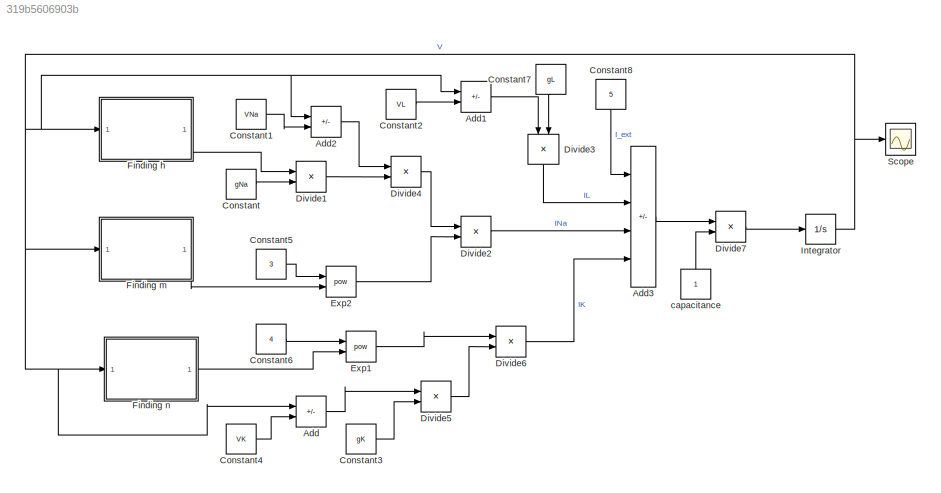
MODEL slx_319b5606903b
KIND model
CONFIG AbsTol = auto
CONFIG EnableMultiTasking = off
CONFIG FixedStep = auto
CONFIG MaxStep = auto
CONFIG MinStep = auto
CONFIG RelTol = 1e-3
CONFIG SampleTimeConstraint = Unconstrained
CONFIG SolverName = VariableStepAuto
CONFIG StartTime = 0.0
CONFIG StopTime = 2
BLOCK [Sum] Add
  IconShape = rectangular
  Inputs = +-
  Ports = [2, 1]
BLOCK [Sum] Add1
  IconShape = rectangular
  Inputs = +-
  Ports = [2, 1]
BLOCK [Sum] Add2
  IconShape = rectangular
  Inputs = +-
  Ports = [2, 1]
BLOCK [Sum] Add3
  IconShape = rectangular
  Inputs = +---
  Ports = [4, 1]
BLOCK [Constant] Constant
  Value = gNa
BLOCK [Constant] Constant1
  Value = VNa
BLOCK [Constant] Constant2
  Value = VL
BLOCK [Constant] Constant3
  Value = gK
BLOCK [Constant] Constant4
  Value = VK
BLOCK [Constant] Constant5
  Value = 3
BLOCK [Constant] Constant6
  Value = 4
BLOCK [Constant] Constant7
  NameLocation = left
  Value = gL
BLOCK [Constant] Constant8
  NameLocation = left
  Value = 5
BLOCK [Product] Divide1
  Inputs = **
  Ports = [2, 1]
BLOCK [Product] Divide2
  Inputs = **
  Ports = [2, 1]
BLOCK [Product] Divide3
  Inputs = **
  NameLocation = left
  Ports = [2, 1]
BLOCK [Product] Divide4
  Inputs = **
  Ports = [2, 1]
BLOCK [Product] Divide5
  Inputs = **
  Ports = [2, 1]
BLOCK [Product] Divide6
  Inputs = **
  Ports = [2, 1]
BLOCK [Product] Divide7
  Inputs = */
  Ports = [2, 1]
BLOCK [Math] Exp1
  Operator = pow
  Ports = [2, 1]
BLOCK [Math] Exp2
  Operator = pow
  Ports = [2, 1]
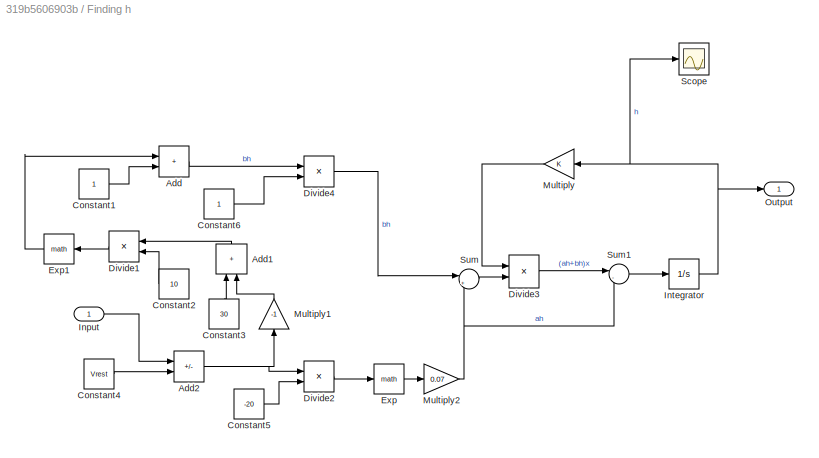
BLOCK [SubSystem] Finding h
  Ports = [1, 1]
  RequestExecContextInheritance = off
BLOCK [Sum] Finding h/Add
  IconShape = rectangular
  Ports = [2, 1]
BLOCK [Sum] Finding h/Add1
  IconShape = rectangular
  NameLocation = right
  Ports = [2, 1]
BLOCK [Sum] Finding h/Add2
  IconShape = rectangular
  Inputs = +-
  Ports = [2, 1]
BLOCK [Constant] Finding h/Constant1
BLOCK [Constant] Finding h/Constant2
  NameLocation = top
  Value = 10
BLOCK [Constant] Finding h/Constant3
  NameLocation = right
  Value = 30
BLOCK [Constant] Finding h/Constant4
  Value = Vrest
BLOCK [Constant] Finding h/Constant5
  Value = -20
BLOCK [Constant] Finding h/Constant6
BLOCK [Product] Finding h/Divide1
  Inputs = */
  NameLocation = top
  Ports = [2, 1]
BLOCK [Product] Finding h/Divide2
  Inputs = */
  Ports = [2, 1]
BLOCK [Product] Finding h/Divide3
  Inputs = **
  Ports = [2, 1]
BLOCK [Product] Finding h/Divide4
  Inputs = /*
  Ports = [2, 1]
BLOCK [Math] Finding h/Exp
  Ports = [1, 1]
BLOCK [Math] Finding h/Exp1
  NameLocation = top
  Ports = [1, 1]
BLOCK [Inport] Finding h/Input
BLOCK [Integrator] Finding h/Integrator
  Ports = [1, 1]
BLOCK [Gain] Finding h/Multiply
  NameLocation = top
BLOCK [Gain] Finding h/Multiply1
  Gain = -1
  NameLocation = right
BLOCK [Gain] Finding h/Multiply2
  Gain = 0.07
BLOCK [Outport] Finding h/Output
BLOCK [Scope] Finding h/Scope
  Floating = off
  NumInputPorts = 1
  Ports = [1]
  ScopeSpecificationString = Simulink.scopes.TimeScopeBlockCfg('CurrentConfiguration', extmgr.ConfigurationSet(extmgr.Configuration('Core','General UI',true),extmgr.Configuration('Core','Source UI',true),extmgr.Configuration('Sources','WiredSimulink',true),extmgr.Configuration('Visuals','Time Domain',true),extmgr.Configuration('Tools','Plot Navigation',true),extmgr.Configuration('Tools','Measurements',true)),'Version','2021b'...<+1ch>  <repeated x3 — deduplicated; at blocks: Scope>
BLOCK [Sum] Finding h/Sum
  Inputs = |++
  Ports = [2, 1]
BLOCK [Sum] Finding h/Sum1
  Inputs = |-+
  Ports = [2, 1]
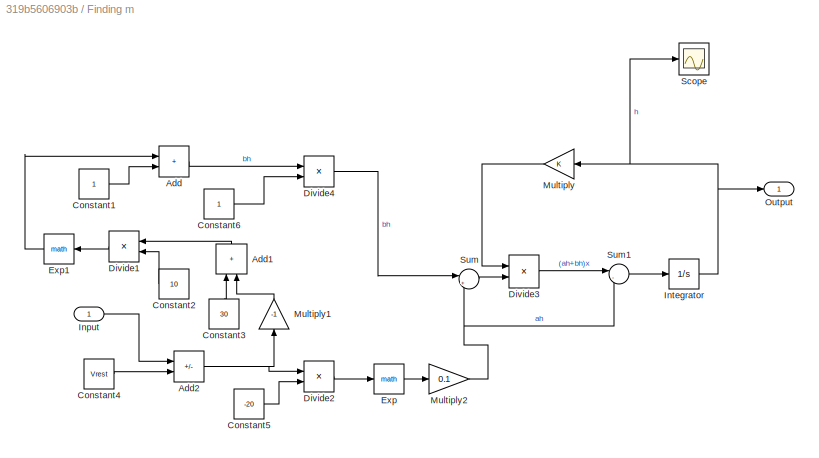
BLOCK [SubSystem] Finding m
  Ports = [1, 1]
  RequestExecContextInheritance = off
BLOCK [Sum] Finding m/Add
  IconShape = rectangular
  Ports = [2, 1]
BLOCK [Sum] Finding m/Add1
  IconShape = rectangular
  NameLocation = right
  Ports = [2, 1]
BLOCK [Sum] Finding m/Add2
  IconShape = rectangular
  Inputs = +-
  Ports = [2, 1]
BLOCK [Constant] Finding m/Constant1
BLOCK [Constant] Finding m/Constant2
  NameLocation = top
  Value = 10
BLOCK [Constant] Finding m/Constant3
  NameLocation = right
  Value = 30
BLOCK [Constant] Finding m/Constant4
  Value = Vrest
BLOCK [Constant] Finding m/Constant5
  Value = -20
BLOCK [Constant] Finding m/Constant6
BLOCK [Product] Finding m/Divide1
  Inputs = */
  NameLocation = top
  Ports = [2, 1]
BLOCK [Product] Finding m/Divide2
  Inputs = */
  Ports = [2, 1]
BLOCK [Product] Finding m/Divide3
  Inputs = **
  Ports = [2, 1]
BLOCK [Product] Finding m/Divide4
  Inputs = /*
  Ports = [2, 1]
BLOCK [Math] Finding m/Exp
  Ports = [1, 1]
BLOCK [Math] Finding m/Exp1
  NameLocation = top
  Ports = [1, 1]
BLOCK [Inport] Finding m/Input
BLOCK [Integrator] Finding m/Integrator
  Ports = [1, 1]
BLOCK [Gain] Finding m/Multiply
  NameLocation = top
BLOCK [Gain] Finding m/Multiply1
  Gain = -1
  NameLocation = right
BLOCK [Gain] Finding m/Multiply2
  Gain = 0.1
BLOCK [Outport] Finding m/Output
BLOCK [Scope] Finding m/Scope
  Floating = off
  NumInputPorts = 1
  Ports = [1]
BLOCK [Sum] Finding m/Sum
  Inputs = |++
  Ports = [2, 1]
BLOCK [Sum] Finding m/Sum1
  Inputs = |-+
  Ports = [2, 1]
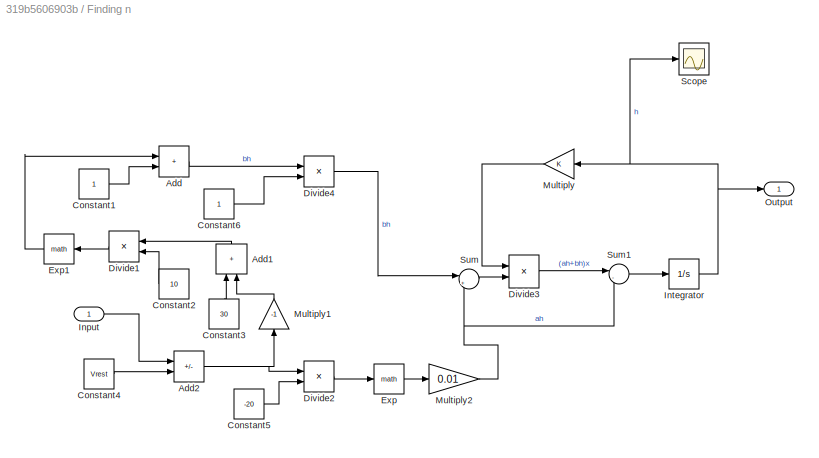
BLOCK [SubSystem] Finding n
  Ports = [1, 1]
  RequestExecContextInheritance = off
BLOCK [Sum] Finding n/Add
  IconShape = rectangular
  Ports = [2, 1]
BLOCK [Sum] Finding n/Add1
  IconShape = rectangular
  NameLocation = right
  Ports = [2, 1]
BLOCK [Sum] Finding n/Add2
  IconShape = rectangular
  Inputs = +-
  Ports = [2, 1]
BLOCK [Constant] Finding n/Constant1
BLOCK [Constant] Finding n/Constant2
  NameLocation = top
  Value = 10
BLOCK [Constant] Finding n/Constant3
  NameLocation = right
  Value = 30
BLOCK [Constant] Finding n/Constant4
  Value = Vrest
BLOCK [Constant] Finding n/Constant5
  Value = -20
BLOCK [Constant] Finding n/Constant6
BLOCK [Product] Finding n/Divide1
  Inputs = */
  NameLocation = top
  Ports = [2, 1]
BLOCK [Product] Finding n/Divide2
  Inputs = */
  Ports = [2, 1]
BLOCK [Product] Finding n/Divide3
  Inputs = **
  Ports = [2, 1]
BLOCK [Product] Finding n/Divide4
  Inputs = /*
  Ports = [2, 1]
BLOCK [Math] Finding n/Exp
  Ports = [1, 1]
BLOCK [Math] Finding n/Exp1
  NameLocation = top
  Ports = [1, 1]
BLOCK [Inport] Finding n/Input
BLOCK [Integrator] Finding n/Integrator
  Ports = [1, 1]
BLOCK [Gain] Finding n/Multiply
  NameLocation = top
BLOCK [Gain] Finding n/Multiply1
  Gain = -1
  NameLocation = right
BLOCK [Gain] Finding n/Multiply2
  Gain = 0.01
BLOCK [Outport] Finding n/Output
BLOCK [Scope] Finding n/Scope
  Floating = off
  NumInputPorts = 1
  Ports = [1]
BLOCK [Sum] Finding n/Sum
  Inputs = |++
  Ports = [2, 1]
BLOCK [Sum] Finding n/Sum1
  Inputs = |-+
  Ports = [2, 1]
BLOCK [Integrator] Integrator
  Ports = [1, 1]
BLOCK [Scope] Scope
  Floating = off
  NumInputPorts = 1
  Ports = [1]
  ScopeSpecificationString = Simulink.scopes.TimeScopeBlockCfg('CurrentConfiguration', extmgr.ConfigurationSet(extmgr.Configuration('Core','General UI',true),extmgr.Configuration('Core','Source UI',true),extmgr.Configuration('Sources','WiredSimulink',true,'DataLoggingVariableName','ScopeData1'),extmgr.Configuration('Visuals','Time Domain',true,'SerializedDisplays',{struct('MinYLimReal','-81.85921','MaxYLimReal','9.09547','YLa...<+1391ch>
BLOCK [Constant] capacitance
  NameLocation = right
LINE Add1:1 -> Divide3:1
LINE Add2:1 -> Divide4:1
LINE Add3:1 -> Divide7:1
LINE Add:1 -> Divide5:1
LINE Constant1:1 -> Add2:2
LINE Constant2:1 -> Add1:2
LINE Constant3:1 -> Divide5:2
LINE Constant4:1 -> Add:2
LINE Constant5:1 -> Exp2:1
LINE Constant6:1 -> Exp1:1
LINE Constant7:1 -> Divide3:2
LINE Constant8:1 -> Add3:1
LINE Constant:1 -> Divide1:2
LINE Divide1:1 -> Divide4:2
LINE Divide2:1 -> Add3:3
LINE Divide3:1 -> Add3:2
LINE Divide4:1 -> Divide2:1
LINE Divide5:1 -> Divide6:2
LINE Divide6:1 -> Add3:4
LINE Divide7:1 -> Integrator:1
LINE Exp1:1 -> Divide6:1
LINE Exp2:1 -> Divide2:2
LINE Finding h/Add1:1 -> Finding h/Divide1:1
NET Finding h/Add2:1 -> Finding h/Divide2:1, Finding h/Multiply1:1
LINE Finding h/Add:1 -> Finding h/Divide4:1
LINE Finding h/Constant1:1 -> Finding h/Add:2
LINE Finding h/Constant2:1 -> Finding h/Divide1:2
LINE Finding h/Constant3:1 -> Finding h/Add1:1
LINE Finding h/Constant4:1 -> Finding h/Add2:2
LINE Finding h/Constant5:1 -> Finding h/Divide2:2
LINE Finding h/Constant6:1 -> Finding h/Divide4:2
LINE Finding h/Divide1:1 -> Finding h/Exp1:1
LINE Finding h/Divide2:1 -> Finding h/Exp:1
LINE Finding h/Divide3:1 -> Finding h/Sum1:1
LINE Finding h/Divide4:1 -> Finding h/Sum:1
LINE Finding h/Exp1:1 -> Finding h/Add:1
LINE Finding h/Exp:1 -> Finding h/Multiply2:1
LINE Finding h/Input:1 -> Finding h/Add2:1
NET Finding h/Integrator:1 -> Finding h/Multiply:1, Finding h/Output:1, Finding h/Scope:1
LINE Finding h/Multiply1:1 -> Finding h/Add1:2
NET Finding h/Multiply2:1 -> Finding h/Sum1:2, Finding h/Sum:2
LINE Finding h/Multiply:1 -> Finding h/Divide3:1
LINE Finding h/Sum1:1 -> Finding h/Integrator:1
LINE Finding h/Sum:1 -> Finding h/Divide3:2
LINE Finding h:1 -> Divide1:1
LINE Finding m/Add1:1 -> Finding m/Divide1:1
NET Finding m/Add2:1 -> Finding m/Divide2:1, Finding m/Multiply1:1
LINE Finding m/Add:1 -> Finding m/Divide4:1
LINE Finding m/Constant1:1 -> Finding m/Add:2
LINE Finding m/Constant2:1 -> Finding m/Divide1:2
LINE Finding m/Constant3:1 -> Finding m/Add1:1
LINE Finding m/Constant4:1 -> Finding m/Add2:2
LINE Finding m/Constant5:1 -> Finding m/Divide2:2
LINE Finding m/Constant6:1 -> Finding m/Divide4:2
LINE Finding m/Divide1:1 -> Finding m/Exp1:1
LINE Finding m/Divide2:1 -> Finding m/Exp:1
LINE Finding m/Divide3:1 -> Finding m/Sum1:1
LINE Finding m/Divide4:1 -> Finding m/Sum:1
LINE Finding m/Exp1:1 -> Finding m/Add:1
LINE Finding m/Exp:1 -> Finding m/Multiply2:1
LINE Finding m/Input:1 -> Finding m/Add2:1
NET Finding m/Integrator:1 -> Finding m/Multiply:1, Finding m/Output:1, Finding m/Scope:1
LINE Finding m/Multiply1:1 -> Finding m/Add1:2
NET Finding m/Multiply2:1 -> Finding m/Sum1:2, Finding m/Sum:2
LINE Finding m/Multiply:1 -> Finding m/Divide3:1
LINE Finding m/Sum1:1 -> Finding m/Integrator:1
LINE Finding m/Sum:1 -> Finding m/Divide3:2
LINE Finding m:1 -> Exp2:2
LINE Finding n/Add1:1 -> Finding n/Divide1:1
NET Finding n/Add2:1 -> Finding n/Divide2:1, Finding n/Multiply1:1
LINE Finding n/Add:1 -> Finding n/Divide4:1
LINE Finding n/Constant1:1 -> Finding n/Add:2
LINE Finding n/Constant2:1 -> Finding n/Divide1:2
LINE Finding n/Constant3:1 -> Finding n/Add1:1
LINE Finding n/Constant4:1 -> Finding n/Add2:2
LINE Finding n/Constant5:1 -> Finding n/Divide2:2
LINE Finding n/Constant6:1 -> Finding n/Divide4:2
LINE Finding n/Divide1:1 -> Finding n/Exp1:1
LINE Finding n/Divide2:1 -> Finding n/Exp:1
LINE Finding n/Divide3:1 -> Finding n/Sum1:1
LINE Finding n/Divide4:1 -> Finding n/Sum:1
LINE Finding n/Exp1:1 -> Finding n/Add:1
LINE Finding n/Exp:1 -> Finding n/Multiply2:1
LINE Finding n/Input:1 -> Finding n/Add2:1
NET Finding n/Integrator:1 -> Finding n/Multiply:1, Finding n/Output:1, Finding n/Scope:1
LINE Finding n/Multiply1:1 -> Finding n/Add1:2
NET Finding n/Multiply2:1 -> Finding n/Sum1:2, Finding n/Sum:2
LINE Finding n/Multiply:1 -> Finding n/Divide3:1
LINE Finding n/Sum1:1 -> Finding n/Integrator:1
LINE Finding n/Sum:1 -> Finding n/Divide3:2
LINE Finding n:1 -> Exp1:2
NET Integrator:1 -> Add1:1, Add2:1, Add:1, Finding h:1, Finding m:1, Finding n:1, Scope:1
LINE capacitance:1 -> Divide7:2
note: NET lines group one-source signal fan-out (src -> all destinations, sorted); 1:1 wires keep LINE
